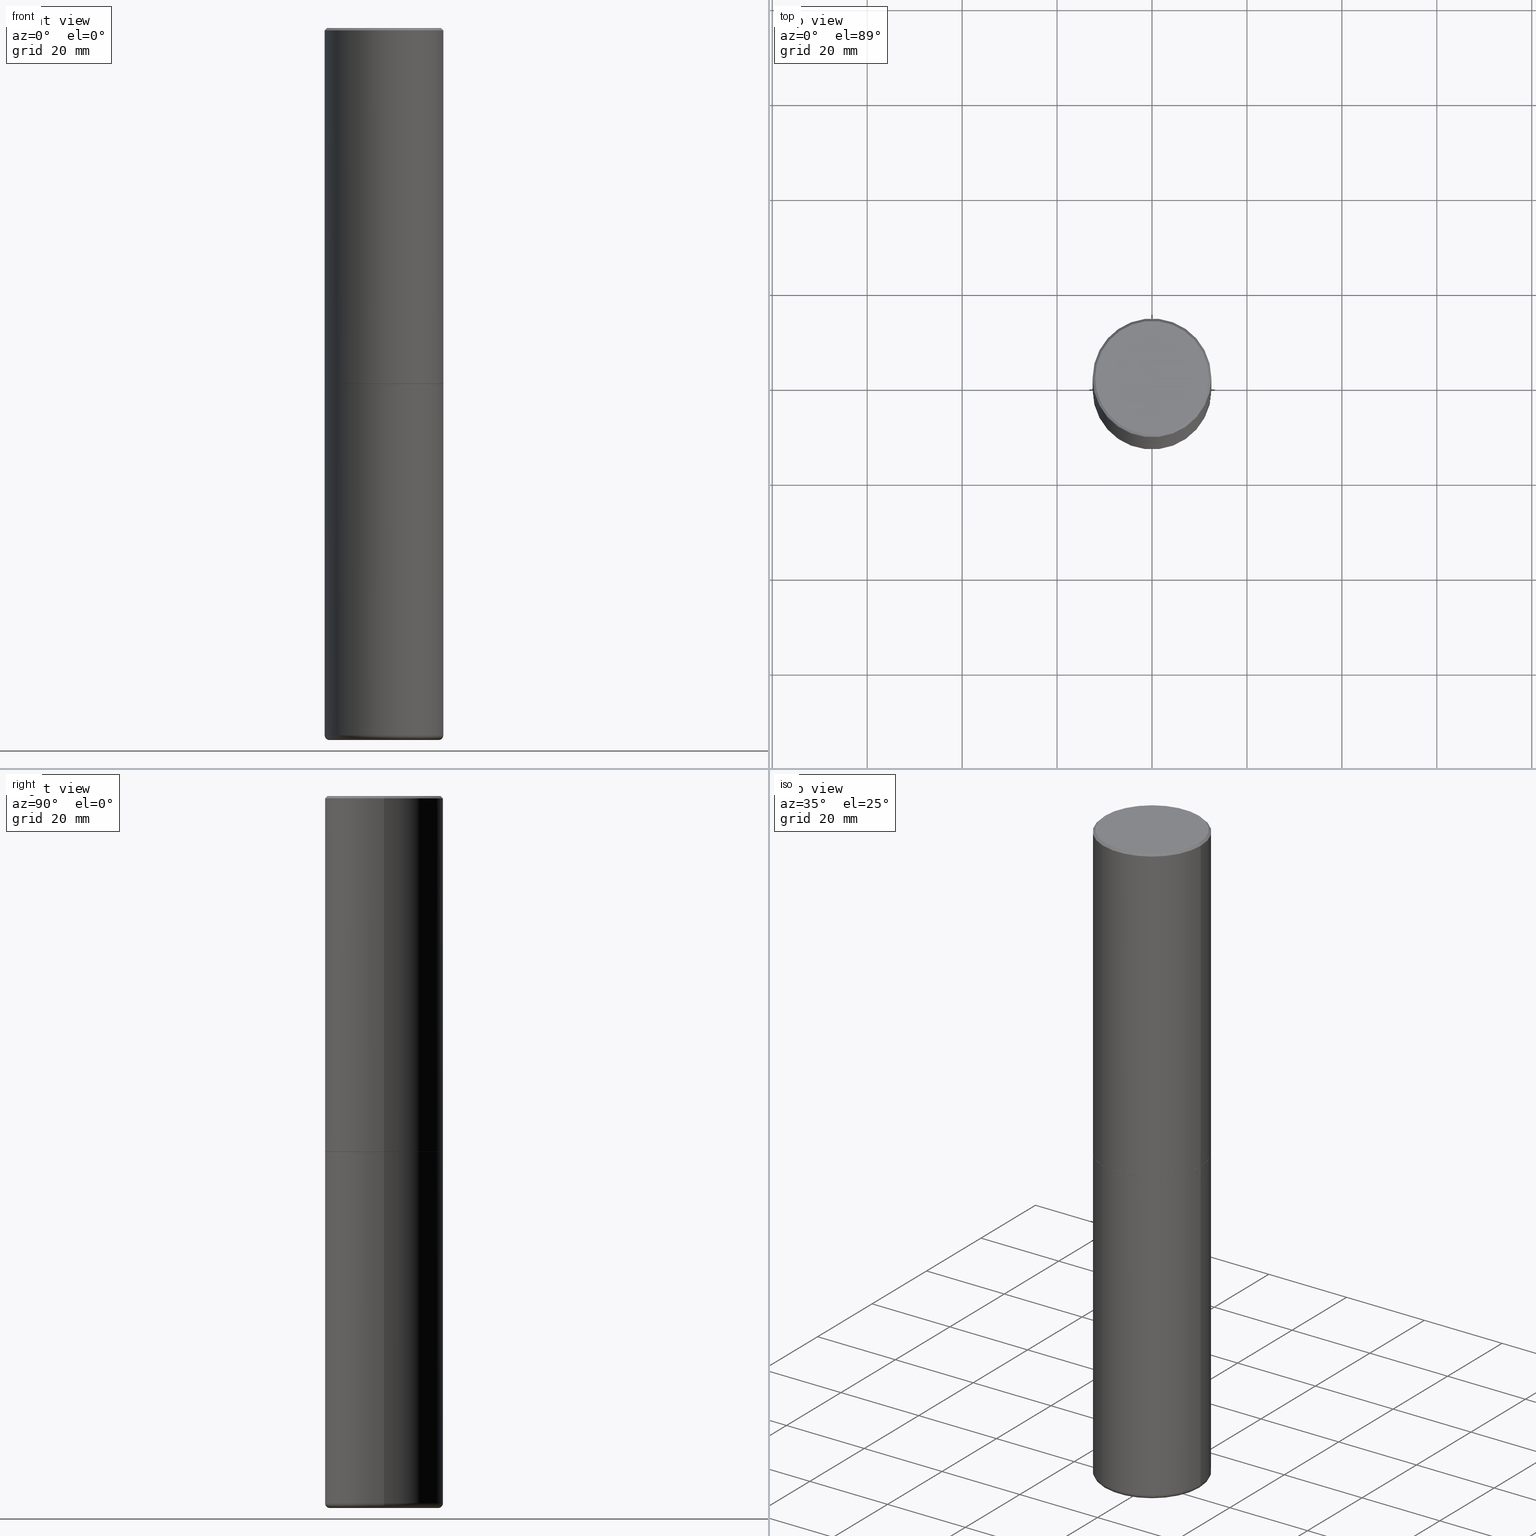
[diagram: canonical four-view strip — front | top / right | iso, engineering-drawing reading convention]
A machine part, canonical four-view strip (front | top / right | iso — engineering-drawing reading convention). The complete STEP part file that produces these views, byte-faithful:
ISO-10303-21;
HEADER;
FILE_DESCRIPTION (( 'STEP AP203' ),
    '1' );
FILE_NAME ('74884.STEP',
    '2024-05-02T19:26:57',
    ( '' ),
    ( '' ),
    'SwSTEP 2.0',
    'SolidWorks 2023',
    '' );
FILE_SCHEMA (( 'CONFIG_CONTROL_DESIGN' ));
ENDSEC;

DATA;
#1 = VERTEX_POINT ( 'NONE', #366 ) ;
#2 = FACE_OUTER_BOUND ( 'NONE', #404, .T. ) ;
#3 = ADVANCED_FACE ( 'NONE', ( #174 ), #260, .T. ) ;
#4 = DIRECTION ( 'NONE',  ( -1.000000000000000000, 6.982962677686265922E-15, 0.000000000000000000 ) ) ;
#5 = CARTESIAN_POINT ( 'NONE',  ( 7.220735744022852519E-29, -1.030929694920215502E-14, -2.952700000000000102 ) ) ;
#6 = LINE ( 'NONE', #265, #293 ) ;
#7 = AXIS2_PLACEMENT_3D ( 'NONE', #373, #407, #277 ) ;
#8 = FACE_OUTER_BOUND ( 'NONE', #320, .T. ) ;
#9 = ADVANCED_FACE ( 'NONE', ( #70 ), #307, .T. ) ;
#10 = CARTESIAN_POINT ( 'NONE',  ( 0.4921500000000000319, -3.446223716380123138E-15, -0.02000000000000010797 ) ) ;
#11 = DIRECTION ( 'NONE',  ( 1.000000000000000000, -6.982962677686266711E-15, 4.876176775795935232E-29 ) ) ;
#12 = AXIS2_PLACEMENT_3D ( 'NONE', #204, #126, #217 ) ;
#13 = CARTESIAN_POINT ( 'NONE',  ( -0.4921500000000000319, 3.366835455046432873E-15, -0.02000000000000010797 ) ) ;
#14 = APPROVAL_DATE_TIME ( #414, #291 ) ;
#15 = CC_DESIGN_PERSON_AND_ORGANIZATION_ASSIGNMENT ( #309, #191, ( #46 ) ) ;
#16 = DIRECTION ( 'NONE',  ( 2.445468806185136597E-29, -3.491481338843145583E-15, -1.000000000000000000 ) ) ;
#17 = PERSON_AND_ORGANIZATION_ROLE ( 'design_supplier' ) ;
#18 = DIRECTION ( 'NONE',  ( 1.000000000000000000, -6.982962677686269077E-15, 0.000000000000000000 ) ) ;
#19 = CARTESIAN_POINT ( 'NONE',  ( 4.890937612370299433E-31, -6.982962677686328587E-17, -0.02000000000000010797 ) ) ;
#20 = APPROVAL_PERSON_ORGANIZATION ( #218, #237, #62 ) ;
#21 = APPLICATION_CONTEXT ( 'configuration controlled 3d designs of mechanical parts and assemblies' ) ;
#22 = PRODUCT_DEFINITION ( 'UNKNOWN', '', #283, #247 ) ;
#23 = DIRECTION ( 'NONE',  ( 0.7071067811865453523, -7.319954787623248157E-15, -0.7071067811865496822 ) ) ;
#24 = PERSON ( 'UNSPECIFIED', 'UNSPECIFIED', 'UNSPECIFIED', ('UNSPECIFIED'), ('UNSPECIFIED'), ('UNSPECIFIED') ) ;
#25 = VERTEX_POINT ( 'NONE', #76 ) ;
#26 = EDGE_LOOP ( 'NONE', ( #165, #122, #359, #394 ) ) ;
#27 = AXIS2_PLACEMENT_3D ( 'NONE', #269, #278, #115 ) ;
#28 = SECURITY_CLASSIFICATION_LEVEL ( 'unclassified' ) ;
#29 = ORIENTED_EDGE ( 'NONE', *, *, #244, .F. ) ;
#30 = LINE ( 'NONE', #295, #234 ) ;
#31 = EDGE_LOOP ( 'NONE', ( #106, #159 ) ) ;
#32 = DIRECTION ( 'NONE',  ( 1.000000000000000000, -6.982962677686265922E-15, 0.000000000000000000 ) ) ;
#33 = ORIENTED_EDGE ( 'NONE', *, *, #50, .T. ) ;
#34 = VECTOR ( 'NONE', #141, 39.37007874015748143 ) ;
#35 = DIRECTION ( 'NONE',  ( -2.445468806185136597E-29, 3.491481338843145583E-15, 1.000000000000000000 ) ) ;
#36 = DIRECTION ( 'NONE',  ( 1.000000000000000000, -6.982962677686268288E-15, 4.883557194083113462E-29 ) ) ;
#37 = DIRECTION ( 'NONE',  ( 2.438088387897960049E-29, -3.491481338843145188E-15, -1.000000000000000000 ) ) ;
#38 = PRODUCT ( '74884', '74884', '', ( #121 ) ) ;
#39 = CARTESIAN_POINT ( 'NONE',  ( 7.220735744022852519E-29, -1.030929694920215502E-14, -2.952700000000000102 ) ) ;
#40 = CIRCLE ( 'NONE', #364, 0.4921500000000000319 ) ;
#41 = CARTESIAN_POINT ( 'NONE',  ( 7.220735744022852519E-29, -1.030929694920215502E-14, -2.952700000000000102 ) ) ;
#42 = DIRECTION ( 'NONE',  ( -2.445468806185136877E-29, 3.491481338843145188E-15, 1.000000000000000000 ) ) ;
#43 = FACE_OUTER_BOUND ( 'NONE', #63, .T. ) ;
#44 = CC_DESIGN_PERSON_AND_ORGANIZATION_ASSIGNMENT ( #252, #375, ( #38 ) ) ;
#45 = COORDINATED_UNIVERSAL_TIME_OFFSET ( 5, 0, .BEHIND. ) ;
#46 = SECURITY_CLASSIFICATION ( '', '', #28 ) ;
#47 = FACE_OUTER_BOUND ( 'NONE', #124, .T. ) ;
#48 = CALENDAR_DATE ( 2024, 2, 5 ) ;
#49 = DIRECTION ( 'NONE',  ( 1.000000000000000000, -6.982962677686268288E-15, 0.000000000000000000 ) ) ;
#50 = EDGE_CURVE ( 'NONE', #253, #162, #304, .T. ) ;
#51 = CARTESIAN_POINT ( 'NONE',  ( 1.444171603492632494E-28, -2.061894304653819828E-14, -5.905500000000000860 ) ) ;
#52 = CARTESIAN_POINT ( 'NONE',  ( -0.4527499999999999858, -1.719320170906439193E-14, -5.905500000000000860 ) ) ;
#53 = MANIFOLD_SOLID_BREP ( 'Body-Move/Copy2[1]', #215 ) ;
#54 = CYLINDRICAL_SURFACE ( 'NONE', #267, 0.4921499999999999764 ) ;
#55 = APPROVAL_STATUS ( 'not_yet_approved' ) ;
#56 = ORIENTED_EDGE ( 'NONE', *, *, #83, .T. ) ;
#57 = APPROVAL_ROLE ( '' ) ;
#58 = EDGE_LOOP ( 'NONE', ( #279, #219, #250, #227 ) ) ;
#59 = ORIENTED_EDGE ( 'NONE', *, *, #321, .F. ) ;
#60 = EDGE_CURVE ( 'NONE', #91, #400, #6, .T. ) ;
#61 = ORGANIZATION ( 'UNSPECIFIED', 'UNSPECIFIED', '' ) ;
#62 = APPROVAL_ROLE ( '' ) ;
#63 = EDGE_LOOP ( 'NONE', ( #361, #353, #385, #326 ) ) ;
#64 = ORIENTED_EDGE ( 'NONE', *, *, #274, .T. ) ;
#65 = DIRECTION ( 'NONE',  ( 0.7071067811867406405, -2.468850131084279700E-15, 0.7071067811863543939 ) ) ;
#66 = VERTEX_POINT ( 'NONE', #235 ) ;
#67 = AXIS2_PLACEMENT_3D ( 'NONE', #243, #239, #208 ) ;
#68 = AXIS2_PLACEMENT_3D ( 'NONE', #318, #180, #49 ) ;
#69 = CARTESIAN_POINT ( 'NONE',  ( 0.4911499999999999755, -1.373897906834776478E-14, -2.952700000000000102 ) ) ;
#70 = FACE_OUTER_BOUND ( 'NONE', #71, .T. ) ;
#71 = EDGE_LOOP ( 'NONE', ( #29, #226, #190, #355 ) ) ;
#72 = EDGE_CURVE ( 'NONE', #253, #156, #344, .T. ) ;
#73 = CARTESIAN_POINT ( 'NONE',  ( 0.4911499999999999755, -1.373897906834776478E-14, -2.952700000000000102 ) ) ;
#74 = CIRCLE ( 'NONE', #94, 0.4921500000000000319 ) ;
#75 = APPROVAL_PERSON_ORGANIZATION ( #89, #157, #57 ) ;
#76 = CARTESIAN_POINT ( 'NONE',  ( -0.4721499999999997921, 3.331920641658001618E-15, 2.817218243466039531E-16 ) ) ;
#77 = CARTESIAN_POINT ( 'NONE',  ( -0.4911499999999999755, -6.814167848168199148E-15, -2.952700000000000102 ) ) ;
#78 = ADVANCED_FACE ( 'NONE', ( #337 ), #275, .T. ) ;
#79 = DIRECTION ( 'NONE',  ( -0.7071067811865453523, 2.468850131082234184E-15, -0.7071067811865496822 ) ) ;
#80 = AXIS2_PLACEMENT_3D ( 'NONE', #139, #264, #365 ) ;
#81 = CIRCLE ( 'NONE', #171, 0.03940000000000040692 ) ;
#82 = DIRECTION ( 'NONE',  ( 1.000000000000000000, -6.982962677686269077E-15, 0.000000000000000000 ) ) ;
#83 = EDGE_CURVE ( 'NONE', #256, #96, #240, .T. ) ;
#84 = DIRECTION ( 'NONE',  ( 1.000000000000000000, -6.982962677686265922E-15, 4.882029041999364017E-29 ) ) ;
#85 = DIRECTION ( 'NONE',  ( -2.445468806185136597E-29, 3.491481338843145583E-15, 1.000000000000000000 ) ) ;
#86 = LINE ( 'NONE', #69, #276 ) ;
#87 = CIRCLE ( 'NONE', #80, 0.03940000000000040692 ) ;
#88 = AXIS2_PLACEMENT_3D ( 'NONE', #101, #228, #362 ) ;
#89 = PERSON_AND_ORGANIZATION ( #24, #61 ) ;
#90 = ADVANCED_FACE ( 'NONE', ( #8 ), #104, .F. ) ;
#91 = VERTEX_POINT ( 'NONE', #102 ) ;
#92 = DIRECTION ( 'NONE',  ( 0.000000000000000000, 0.000000000000000000, 1.000000000000000000 ) ) ;
#93 = ORIENTED_EDGE ( 'NONE', *, *, #333, .T. ) ;
#94 = AXIS2_PLACEMENT_3D ( 'NONE', #212, #184, #272 ) ;
#95 = DATE_AND_TIME ( #238, #111 ) ;
#96 = VERTEX_POINT ( 'NONE', #73 ) ;
#97 = ADVANCED_FACE ( 'NONE', ( #138 ), #172, .F. ) ;
#98 = VERTEX_POINT ( 'NONE', #10 ) ;
#99 = CARTESIAN_POINT ( 'NONE',  ( 7.220735744022852519E-29, -1.030929694920215502E-14, -2.952700000000000102 ) ) ;
#100 = ORIENTED_EDGE ( 'NONE', *, *, #187, .F. ) ;
#101 = CARTESIAN_POINT ( 'NONE',  ( 7.220735744022852519E-29, -1.030929694920215502E-14, -2.952700000000000102 ) ) ;
#102 = CARTESIAN_POINT ( 'NONE',  ( 0.4921500000000002539, -2.391804376361107326E-14, -5.866100000000000314 ) ) ;
#103 = CIRCLE ( 'NONE', #7, 0.4911499999999999755 ) ;
#104 = PLANE ( 'NONE',  #281 ) ;
#105 = CARTESIAN_POINT ( 'NONE',  ( 0.000000000000000000, 0.000000000000000000, 0.000000000000000000 ) ) ;
#106 = ORIENTED_EDGE ( 'NONE', *, *, #169, .F. ) ;
#107 = DIRECTION ( 'NONE',  ( -1.000000000000000000, 7.105427357601001859E-15, 0.000000000000000000 ) ) ;
#108 = APPLICATION_PROTOCOL_DEFINITION ( 'international standard', 'config_control_design', 1994, #289 ) ;
#109 = DIRECTION ( 'NONE',  ( -1.000000000000000000, 6.982962677686265922E-15, 0.000000000000000000 ) ) ;
#110 = AXIS2_PLACEMENT_3D ( 'NONE', #41, #229, #262 ) ;
#111 = LOCAL_TIME ( 15, 26, 57.00000000000000000, #352 ) ;
#112 = ORIENTED_EDGE ( 'NONE', *, *, #140, .T. ) ;
#113 = DIRECTION ( 'NONE',  ( -2.445468806185136597E-29, 3.491481338843145583E-15, 1.000000000000000000 ) ) ;
#114 = CARTESIAN_POINT ( 'NONE',  ( 1.444171603492632494E-28, -2.061894304653819828E-14, -5.905500000000000860 ) ) ;
#115 = DIRECTION ( 'NONE',  ( 1.000000000000000000, -6.982962677686265922E-15, 0.000000000000000000 ) ) ;
#116 = ADVANCED_FACE ( 'NONE', ( #233 ), #398, .T. ) ;
#117 = AXIS2_PLACEMENT_3D ( 'NONE', #371, #135, #201 ) ;
#118 = AXIS2_PLACEMENT_3D ( 'NONE', #310, #113, #175 ) ;
#119 = APPROVAL_DATE_TIME ( #181, #157 ) ;
#120 = ORIENTED_EDGE ( 'NONE', *, *, #145, .F. ) ;
#121 = MECHANICAL_CONTEXT ( 'NONE', #21, 'mechanical' ) ;
#122 = ORIENTED_EDGE ( 'NONE', *, *, #321, .T. ) ;
#123 = PERSON_AND_ORGANIZATION ( #24, #61 ) ;
#124 = EDGE_LOOP ( 'NONE', ( #112, #33, #285, #259 ) ) ;
#125 = EDGE_CURVE ( 'NONE', #1, #91, #87, .T. ) ;
#126 = DIRECTION ( 'NONE',  ( -2.445468806185136597E-29, 3.491481338843145583E-15, 1.000000000000000000 ) ) ;
#127 = AXIS2_PLACEMENT_3D ( 'NONE', #332, #205, #4 ) ;
#128 = LOCAL_TIME ( 15, 26, 57.00000000000000000, #189 ) ;
#129 = ORIENTED_EDGE ( 'NONE', *, *, #274, .F. ) ;
#130 = CARTESIAN_POINT ( 'NONE',  ( 0.4921499999999999764, -1.374596203102545079E-14, -2.952700000000000102 ) ) ;
#131 = ORIENTED_EDGE ( 'NONE', *, *, #145, .T. ) ;
#132 = DIRECTION ( 'NONE',  ( -2.445468806185136597E-29, 3.491481338843145583E-15, 1.000000000000000000 ) ) ;
#133 = DIRECTION ( 'NONE',  ( -1.000000000000000000, 6.982962677686265922E-15, -4.876176775795935793E-29 ) ) ;
#134 =( LENGTH_UNIT ( ) NAMED_UNIT ( * ) SI_UNIT ( $, .METRE. ) );
#135 = DIRECTION ( 'NONE',  ( -2.445468806185136597E-29, 3.491481338843145583E-15, 1.000000000000000000 ) ) ;
#136 = AXIS2_PLACEMENT_3D ( 'NONE', #263, #213, #246 ) ;
#137 = CIRCLE ( 'NONE', #88, 0.4921499999999999764 ) ;
#138 = FACE_OUTER_BOUND ( 'NONE', #254, .T. ) ;
#139 = CARTESIAN_POINT ( 'NONE',  ( 0.4527499999999999858, -2.364291503411023483E-14, -5.866100000000000314 ) ) ;
#140 = EDGE_CURVE ( 'NONE', #156, #253, #142, .T. ) ;
#141 = DIRECTION ( 'NONE',  ( -2.445468806185136877E-29, 3.491481338843145188E-15, 1.000000000000000000 ) ) ;
#142 = CIRCLE ( 'NONE', #136, 0.4921500000000003094 ) ;
#143 = CARTESIAN_POINT ( 'NONE',  ( -0.4527499999999999858, -1.726439644563392242E-14, -5.866100000000000314 ) ) ;
#144 = DATE_AND_TIME ( #286, #128 ) ;
#145 = EDGE_CURVE ( 'NONE', #66, #91, #74, .T. ) ;
#146 = DIRECTION ( 'NONE',  ( -2.445468806185136597E-29, 3.491481338843145583E-15, 1.000000000000000000 ) ) ;
#147 = LINE ( 'NONE', #209, #299 ) ;
#148 = AXIS2_PLACEMENT_3D ( 'NONE', #114, #245, #82 ) ;
#149 = FACE_OUTER_BOUND ( 'NONE', #167, .T. ) ;
#150 = ADVANCED_FACE ( 'NONE', ( #47 ), #314, .T. ) ;
#151 = CARTESIAN_POINT ( 'NONE',  ( -6.889419334612450925E-45, 9.836264924510951028E-31, 2.817218243466271259E-16 ) ) ;
#152 = EDGE_CURVE ( 'NONE', #197, #1, #381, .T. ) ;
#153 = DATE_TIME_ROLE ( 'creation_date' ) ;
#154 = ORIENTED_EDGE ( 'NONE', *, *, #408, .F. ) ;
#155 = CONICAL_SURFACE ( 'NONE', #68, 0.4911499999999999755, 0.7853981633977213939 ) ;
#156 = VERTEX_POINT ( 'NONE', #403 ) ;
#157 = APPROVAL ( #351, 'UNSPECIFIED' ) ;
#158 = PERSON_AND_ORGANIZATION_ROLE ( 'creator' ) ;
#159 = ORIENTED_EDGE ( 'NONE', *, *, #83, .F. ) ;
#160 =( NAMED_UNIT ( * ) SI_UNIT ( $, .STERADIAN. ) SOLID_ANGLE_UNIT ( ) );
#161 = PRODUCT_DEFINITION_SHAPE ( 'NONE', 'NONE',  #22 ) ;
#162 = VERTEX_POINT ( 'NONE', #315 ) ;
#163 = PLANE ( 'NONE',  #177 ) ;
#164 = APPROVAL_PERSON_ORGANIZATION ( #319, #291, #311 ) ;
#165 = ORIENTED_EDGE ( 'NONE', *, *, #182, .T. ) ;
#166 = PLANE ( 'NONE',  #390 ) ;
#167 = EDGE_LOOP ( 'NONE', ( #196, #56, #192, #282 ) ) ;
#168 = DIRECTION ( 'NONE',  ( -2.445468806185136877E-29, 3.491481338843145188E-15, 1.000000000000000000 ) ) ;
#169 = EDGE_CURVE ( 'NONE', #96, #256, #103, .T. ) ;
#170 = CARTESIAN_POINT ( 'NONE',  ( 3.297005828269569180E-15, 0.4721499999999997921, -1.507642001961476820E-15 ) ) ;
#171 = AXIS2_PLACEMENT_3D ( 'NONE', #143, #401, #107 ) ;
#172 = PLANE ( 'NONE',  #110 ) ;
#173 = ADVANCED_FACE ( 'NONE', ( #376 ), #223, .T. ) ;
#174 = FACE_OUTER_BOUND ( 'NONE', #58, .T. ) ;
#175 = DIRECTION ( 'NONE',  ( 1.000000000000000000, -6.982962677686268288E-15, 0.000000000000000000 ) ) ;
#176 = CLOSED_SHELL ( 'NONE', ( #298, #150, #9, #173, #3, #210, #411, #90 ) ) ;
#177 = AXIS2_PLACEMENT_3D ( 'NONE', #292, #37, #330 ) ;
#178 = DIRECTION ( 'NONE',  ( 1.000000000000000000, 0.000000000000000000, 0.000000000000000000 ) ) ;
#179 = ORIENTED_EDGE ( 'NONE', *, *, #408, .T. ) ;
#180 = DIRECTION ( 'NONE',  ( -2.445468806185136597E-29, 3.491481338843145583E-15, 1.000000000000000000 ) ) ;
#181 = DATE_AND_TIME ( #412, #230 ) ;
#182 = EDGE_CURVE ( 'NONE', #1, #197, #356, .T. ) ;
#183 = DIRECTION ( 'NONE',  ( -2.445468806185136597E-29, 3.491481338843145583E-15, 1.000000000000000000 ) ) ;
#184 = DIRECTION ( 'NONE',  ( -2.445468806185136597E-29, 3.491481338843145583E-15, 1.000000000000000000 ) ) ;
#185 = LOCAL_TIME ( 15, 26, 57.00000000000000000, #284 ) ;
#186 = CARTESIAN_POINT ( 'NONE',  ( 0.4921500000000000319, -3.446223716380123138E-15, -0.02000000000000010797 ) ) ;
#187 = EDGE_CURVE ( 'NONE', #25, #290, #389, .T. ) ;
#188 = DIRECTION ( 'NONE',  ( 1.000000000000000000, -6.982962677686265922E-15, 4.876176775795935793E-29 ) ) ;
#189 = COORDINATED_UNIVERSAL_TIME_OFFSET ( 5, 0, .BEHIND. ) ;
#190 = ORIENTED_EDGE ( 'NONE', *, *, #367, .T. ) ;
#191 = PERSON_AND_ORGANIZATION_ROLE ( 'classification_officer' ) ;
#192 = ORIENTED_EDGE ( 'NONE', *, *, #339, .T. ) ;
#193 = AXIS2_PLACEMENT_3D ( 'NONE', #39, #338, #206 ) ;
#194 = CIRCLE ( 'NONE', #369, 0.4921499999999999764 ) ;
#195 = DATE_TIME_ROLE ( 'classification_date' ) ;
#196 = ORIENTED_EDGE ( 'NONE', *, *, #221, .F. ) ;
#197 = VERTEX_POINT ( 'NONE', #52 ) ;
#198 = FACE_OUTER_BOUND ( 'NONE', #287, .T. ) ;
#199 = ORIENTED_EDGE ( 'NONE', *, *, #232, .F. ) ;
#200 = FACE_OUTER_BOUND ( 'NONE', #26, .T. ) ;
#201 = DIRECTION ( 'NONE',  ( 1.000000000000000000, -6.982962677686265922E-15, 0.000000000000000000 ) ) ;
#202 = CC_DESIGN_SECURITY_CLASSIFICATION ( #46, ( #283 ) ) ;
#203 = CC_DESIGN_DATE_AND_TIME_ASSIGNMENT ( #144, #195, ( #46 ) ) ;
#204 = CARTESIAN_POINT ( 'NONE',  ( 4.890937612370299433E-31, -6.982962677686328587E-17, -0.02000000000000010797 ) ) ;
#205 = DIRECTION ( 'NONE',  ( 2.445468806185136597E-29, -3.491481338843145583E-15, -1.000000000000000000 ) ) ;
#206 = DIRECTION ( 'NONE',  ( 1.000000000000000000, -6.982962677686268288E-15, 0.000000000000000000 ) ) ;
#207 = CC_DESIGN_PERSON_AND_ORGANIZATION_ASSIGNMENT ( #383, #17, ( #283 ) ) ;
#208 = DIRECTION ( 'NONE',  ( 1.000000000000000000, -6.982962677686266711E-15, 4.876176775795935232E-29 ) ) ;
#209 = CARTESIAN_POINT ( 'NONE',  ( -0.4921499999999999764, 3.496936074043332897E-15, -2.420853904668951509E-29 ) ) ;
#210 = ADVANCED_FACE ( 'NONE', ( #149 ), #155, .T. ) ;
#211 = CIRCLE ( 'NONE', #27, 0.4921500000000000319 ) ;
#212 = CARTESIAN_POINT ( 'NONE',  ( 1.434536456396262923E-28, -2.048137868178777591E-14, -5.866100000000000314 ) ) ;
#213 = DIRECTION ( 'NONE',  ( -2.445468806185136597E-29, 3.491481338843145583E-15, 1.000000000000000000 ) ) ;
#214 = DIRECTION ( 'NONE',  ( -0.7071067811867406405, 7.493145998871051513E-15, 0.7071067811863543939 ) ) ;
#215 = CLOSED_SHELL ( 'NONE', ( #116, #358, #97, #386, #78, #379 ) ) ;
#216 = CC_DESIGN_APPROVAL ( #291, ( #46 ) ) ;
#217 = DIRECTION ( 'NONE',  ( 1.000000000000000000, -6.982962677686265922E-15, 0.000000000000000000 ) ) ;
#218 = PERSON_AND_ORGANIZATION ( #24, #61 ) ;
#219 = ORIENTED_EDGE ( 'NONE', *, *, #72, .T. ) ;
#220 = UNCERTAINTY_MEASURE_WITH_UNIT (LENGTH_MEASURE( 1.000000000000000082E-05 ), #328, 'distance_accuracy_value', 'NONE');
#221 = EDGE_CURVE ( 'NONE', #256, #253, #378, .T. ) ;
#222 = ORIENTED_EDGE ( 'NONE', *, *, #305, .T. ) ;
#223 = CONICAL_SURFACE ( 'NONE', #335, 0.4921500000000000319, 0.7853981633974452814 ) ;
#224 = VECTOR ( 'NONE', #79, 39.37007874015748143 ) ;
#225 = ORIENTED_EDGE ( 'NONE', *, *, #251, .T. ) ;
#226 = ORIENTED_EDGE ( 'NONE', *, *, #232, .T. ) ;
#227 = ORIENTED_EDGE ( 'NONE', *, *, #251, .F. ) ;
#228 = DIRECTION ( 'NONE',  ( -2.445468806185136597E-29, 3.491481338843145583E-15, 1.000000000000000000 ) ) ;
#229 = DIRECTION ( 'NONE',  ( 2.438088387897960049E-29, -3.491481338843145188E-15, -1.000000000000000000 ) ) ;
#230 = LOCAL_TIME ( 15, 26, 57.00000000000000000, #45 ) ;
#231 = DIRECTION ( 'NONE',  ( 1.000000000000000000, -6.982962677686265922E-15, 4.876176775795935793E-29 ) ) ;
#232 = EDGE_CURVE ( 'NONE', #290, #98, #372, .T. ) ;
#233 = FACE_OUTER_BOUND ( 'NONE', #303, .T. ) ;
#234 = VECTOR ( 'NONE', #168, 39.37007874015748143 ) ;
#235 = CARTESIAN_POINT ( 'NONE',  ( -0.4921500000000002539, -1.698444260774444222E-14, -5.866100000000000314 ) ) ;
#236 = CARTESIAN_POINT ( 'NONE',  ( 1.434536456396262923E-28, -2.048137868178777591E-14, -5.866100000000000314 ) ) ;
#237 = APPROVAL ( #55, 'UNSPECIFIED' ) ;
#238 = CALENDAR_DATE ( 2024, 2, 5 ) ;
#239 = DIRECTION ( 'NONE',  ( -2.445468806185136597E-29, 3.491481338843145583E-15, 1.000000000000000000 ) ) ;
#240 = CIRCLE ( 'NONE', #193, 0.4911499999999999755 ) ;
#241 = VECTOR ( 'NONE', #23, 39.37007874015748143 ) ;
#242 = APPLICATION_PROTOCOL_DEFINITION ( 'international standard', 'config_control_design', 1994, #21 ) ;
#243 = CARTESIAN_POINT ( 'NONE',  ( 0.000000000000000000, 0.000000000000000000, 0.000000000000000000 ) ) ;
#244 = EDGE_CURVE ( 'NONE', #290, #25, #406, .T. ) ;
#245 = DIRECTION ( 'NONE',  ( -2.445468806185136597E-29, 3.491481338843145583E-15, 1.000000000000000000 ) ) ;
#246 = DIRECTION ( 'NONE',  ( 1.000000000000000000, -6.982962677686265922E-15, 0.000000000000000000 ) ) ;
#247 = DESIGN_CONTEXT ( 'detailed design', #289, 'design' ) ;
#248 = CIRCLE ( 'NONE', #12, 0.4921500000000000319 ) ;
#249 = APPROVAL_DATE_TIME ( #95, #237 ) ;
#250 = ORIENTED_EDGE ( 'NONE', *, *, #350, .T. ) ;
#251 = EDGE_CURVE ( 'NONE', #162, #98, #211, .T. ) ;
#252 = PERSON_AND_ORGANIZATION ( #24, #61 ) ;
#253 = VERTEX_POINT ( 'NONE', #409 ) ;
#254 = EDGE_LOOP ( 'NONE', ( #392, #179 ) ) ;
#255 = APPROVAL_STATUS ( 'not_yet_approved' ) ;
#256 = VERTEX_POINT ( 'NONE', #77 ) ;
#257 = EDGE_LOOP ( 'NONE', ( #59, #413, #294, #120 ) ) ;
#258 = DIRECTION ( 'NONE',  ( -2.438088387897960049E-29, 3.491481338843145188E-15, 1.000000000000000000 ) ) ;
#259 = ORIENTED_EDGE ( 'NONE', *, *, #350, .F. ) ;
#260 = CYLINDRICAL_SURFACE ( 'NONE', #316, 0.4921500000000001984 ) ;
#261 = CARTESIAN_POINT ( 'NONE',  ( 0.000000000000000000, 0.000000000000000000, 0.000000000000000000 ) ) ;
#262 = DIRECTION ( 'NONE',  ( -1.000000000000000000, 6.982962677686265922E-15, -4.876176775795935793E-29 ) ) ;
#263 = CARTESIAN_POINT ( 'NONE',  ( 7.218290275216666916E-29, -1.030580546786331359E-14, -2.951700000000000212 ) ) ;
#264 = DIRECTION ( 'NONE',  ( -6.982962677686266711E-15, -1.000000000000000000, 3.491481338843145583E-15 ) ) ;
#265 = CARTESIAN_POINT ( 'NONE',  ( 0.4921499999999999764, -3.436665081823295777E-15, 2.399810400207969603E-29 ) ) ;
#266 = AXIS2_PLACEMENT_3D ( 'NONE', #105, #300, #231 ) ;
#267 = AXIS2_PLACEMENT_3D ( 'NONE', #261, #132, #418 ) ;
#268 = CC_DESIGN_PERSON_AND_ORGANIZATION_ASSIGNMENT ( #123, #402, ( #22 ) ) ;
#269 = CARTESIAN_POINT ( 'NONE',  ( 4.890937612370299433E-31, -6.982962677686328587E-17, -0.02000000000000010797 ) ) ;
#270 = SHAPE_DEFINITION_REPRESENTATION ( #161, #312 ) ;
#271 = VERTEX_POINT ( 'NONE', #347 ) ;
#272 = DIRECTION ( 'NONE',  ( 1.000000000000000000, -6.982962677686265133E-15, 0.000000000000000000 ) ) ;
#273 = DIRECTION ( 'NONE',  ( 1.000000000000000000, -6.982962677686265922E-15, 4.882029041999364017E-29 ) ) ;
#274 = EDGE_CURVE ( 'NONE', #66, #271, #147, .T. ) ;
#275 = TOROIDAL_SURFACE ( 'NONE', #363, 0.4527499999999999858, 0.03940000000000037222 ) ;
#276 = VECTOR ( 'NONE', #65, 39.37007874015748143 ) ;
#277 = DIRECTION ( 'NONE',  ( 1.000000000000000000, -6.982962677686268288E-15, 0.000000000000000000 ) ) ;
#278 = DIRECTION ( 'NONE',  ( -2.445468806185136597E-29, 3.491481338843145583E-15, 1.000000000000000000 ) ) ;
#279 = ORIENTED_EDGE ( 'NONE', *, *, #50, .F. ) ;
#280 = EDGE_LOOP ( 'NONE', ( #199, #100, #222, #225 ) ) ;
#281 = AXIS2_PLACEMENT_3D ( 'NONE', #170, #296, #133 ) ;
#282 = ORIENTED_EDGE ( 'NONE', *, *, #72, .F. ) ;
#283 = PRODUCT_DEFINITION_FORMATION_WITH_SPECIFIED_SOURCE ( 'ANY', '', #38, .NOT_KNOWN. ) ;
#284 = COORDINATED_UNIVERSAL_TIME_OFFSET ( 5, 0, .BEHIND. ) ;
#285 = ORIENTED_EDGE ( 'NONE', *, *, #367, .F. ) ;
#286 = CALENDAR_DATE ( 2024, 2, 5 ) ;
#287 = EDGE_LOOP ( 'NONE', ( #129, #131, #325, #154 ) ) ;
#288 = LENGTH_MEASURE_WITH_UNIT ( LENGTH_MEASURE( 0.02539999999999999897 ), #134 );
#289 = APPLICATION_CONTEXT ( 'configuration controlled 3d designs of mechanical parts and assemblies' ) ;
#290 = VERTEX_POINT ( 'NONE', #405 ) ;
#291 = APPROVAL ( #255, 'UNSPECIFIED' ) ;
#292 = CARTESIAN_POINT ( 'NONE',  ( 4.488705641877112035E-29, -3.487222041955580978E-14, -5.905500000000000860 ) ) ;
#293 = VECTOR ( 'NONE', #42, 39.37007874015748143 ) ;
#294 = ORIENTED_EDGE ( 'NONE', *, *, #125, .T. ) ;
#295 = CARTESIAN_POINT ( 'NONE',  ( 0.4921500000000001984, -3.436665081823297354E-15, 2.399810400207970443E-29 ) ) ;
#296 = DIRECTION ( 'NONE',  ( 2.438088387897960049E-29, -3.491481338843145188E-15, -1.000000000000000000 ) ) ;
#297 = FACE_OUTER_BOUND ( 'NONE', #31, .T. ) ;
#298 = ADVANCED_FACE ( 'NONE', ( #43 ), #308, .T. ) ;
#299 = VECTOR ( 'NONE', #340, 39.37007874015748143 ) ;
#300 = DIRECTION ( 'NONE',  ( -2.445468806185136597E-29, 3.491481338843145583E-15, 1.000000000000000000 ) ) ;
#301 =( GEOMETRIC_REPRESENTATION_CONTEXT ( 3 ) GLOBAL_UNCERTAINTY_ASSIGNED_CONTEXT ( ( #220 ) ) GLOBAL_UNIT_ASSIGNED_CONTEXT ( ( #328, #380, #160 ) ) REPRESENTATION_CONTEXT ( 'NONE', 'WORKASPACE' ) );
#302 = CARTESIAN_POINT ( 'NONE',  ( -0.4921500000000001984, 3.496936074043334475E-15, -2.420853904668952630E-29 ) ) ;
#303 = EDGE_LOOP ( 'NONE', ( #93, #64, #416, #322 ) ) ;
#304 = LINE ( 'NONE', #302, #34 ) ;
#305 = EDGE_CURVE ( 'NONE', #25, #162, #306, .T. ) ;
#306 = LINE ( 'NONE', #13, #224 ) ;
#307 = CONICAL_SURFACE ( 'NONE', #127, 0.4921500000000000319, 0.7853981633974452814 ) ;
#308 = CONICAL_SURFACE ( 'NONE', #118, 0.4911499999999999755, 0.7853981633977213939 ) ;
#309 = PERSON_AND_ORGANIZATION ( #24, #61 ) ;
#310 = CARTESIAN_POINT ( 'NONE',  ( 7.220735744022852519E-29, -1.030929694920215502E-14, -2.952700000000000102 ) ) ;
#311 = APPROVAL_ROLE ( '' ) ;
#312 = ADVANCED_BREP_SHAPE_REPRESENTATION ( '74884', ( #53, #341, #336 ), #301 ) ;
#313 = CC_DESIGN_DATE_AND_TIME_ASSIGNMENT ( #342, #153, ( #22 ) ) ;
#314 = CYLINDRICAL_SURFACE ( 'NONE', #67, 0.4921500000000001984 ) ;
#315 = CARTESIAN_POINT ( 'NONE',  ( -0.4921500000000000319, 3.366835455046432873E-15, -0.02000000000000010797 ) ) ;
#316 = AXIS2_PLACEMENT_3D ( 'NONE', #396, #370, #11 ) ;
#317 = CC_DESIGN_APPROVAL ( #157, ( #283 ) ) ;
#318 = CARTESIAN_POINT ( 'NONE',  ( 7.220735744022852519E-29, -1.030929694920215502E-14, -2.952700000000000102 ) ) ;
#319 = PERSON_AND_ORGANIZATION ( #24, #61 ) ;
#320 = EDGE_LOOP ( 'NONE', ( #329, #388 ) ) ;
#321 = EDGE_CURVE ( 'NONE', #197, #66, #81, .T. ) ;
#322 = ORIENTED_EDGE ( 'NONE', *, *, #60, .F. ) ;
#323 = TOROIDAL_SURFACE ( 'NONE', #382, 0.4527499999999999858, 0.03940000000000037222 ) ;
#324 = CALENDAR_DATE ( 2024, 2, 5 ) ;
#325 = ORIENTED_EDGE ( 'NONE', *, *, #60, .T. ) ;
#326 = ORIENTED_EDGE ( 'NONE', *, *, #339, .F. ) ;
#327 = DIMENSIONAL_EXPONENTS ( 1.000000000000000000, 0.000000000000000000, 0.000000000000000000, 0.000000000000000000, 0.000000000000000000, 0.000000000000000000, 0.000000000000000000 ) ;
#328 =( CONVERSION_BASED_UNIT ( 'INCH', #288 ) LENGTH_UNIT ( ) NAMED_UNIT ( #327 ) );
#329 = ORIENTED_EDGE ( 'NONE', *, *, #187, .T. ) ;
#330 = DIRECTION ( 'NONE',  ( -1.000000000000000000, 6.982962677686265922E-15, -4.876176775795935793E-29 ) ) ;
#331 = DIRECTION ( 'NONE',  ( -2.445468806185136597E-29, 3.491481338843145583E-15, 1.000000000000000000 ) ) ;
#332 = CARTESIAN_POINT ( 'NONE',  ( 4.890937612370299433E-31, -6.982962677686328587E-17, -0.02000000000000010797 ) ) ;
#333 = EDGE_CURVE ( 'NONE', #91, #66, #40, .T. ) ;
#334 = CARTESIAN_POINT ( 'NONE',  ( 1.434536456396262923E-28, -2.048137868178777591E-14, -5.866100000000000314 ) ) ;
#335 = AXIS2_PLACEMENT_3D ( 'NONE', #19, #16, #109 ) ;
#336 = AXIS2_PLACEMENT_3D ( 'NONE', #387, #92, #178 ) ;
#337 = FACE_OUTER_BOUND ( 'NONE', #257, .T. ) ;
#338 = DIRECTION ( 'NONE',  ( -2.445468806185136597E-29, 3.491481338843145583E-15, 1.000000000000000000 ) ) ;
#339 = EDGE_CURVE ( 'NONE', #96, #156, #86, .T. ) ;
#340 = DIRECTION ( 'NONE',  ( -2.445468806185136877E-29, 3.491481338843145188E-15, 1.000000000000000000 ) ) ;
#341 = MANIFOLD_SOLID_BREP ( 'Body-Move/Copy2[2]', #176 ) ;
#342 = DATE_AND_TIME ( #48, #185 ) ;
#343 = CARTESIAN_POINT ( 'NONE',  ( -0.4911499999999999755, -6.819466302516422338E-15, -2.952700000000000102 ) ) ;
#344 = CIRCLE ( 'NONE', #117, 0.4921500000000003094 ) ;
#345 = COORDINATED_UNIVERSAL_TIME_OFFSET ( 5, 0, .BEHIND. ) ;
#346 = CARTESIAN_POINT ( 'NONE',  ( -6.889419334612450925E-45, 9.836264924510951028E-31, 2.817218243466271259E-16 ) ) ;
#347 = CARTESIAN_POINT ( 'NONE',  ( -0.4921499999999999764, -1.189840174145163414E-14, -2.952700000000000102 ) ) ;
#348 = DIRECTION ( 'NONE',  ( -2.445468806185136597E-29, 3.491481338843145583E-15, 1.000000000000000000 ) ) ;
#349 = DIRECTION ( 'NONE',  ( 1.000000000000000000, -6.982962677686268288E-15, 4.883557194083113462E-29 ) ) ;
#350 = EDGE_CURVE ( 'NONE', #156, #98, #30, .T. ) ;
#351 = APPROVAL_STATUS ( 'not_yet_approved' ) ;
#352 = COORDINATED_UNIVERSAL_TIME_OFFSET ( 5, 0, .BEHIND. ) ;
#353 = ORIENTED_EDGE ( 'NONE', *, *, #221, .T. ) ;
#354 = PERSON_AND_ORGANIZATION ( #24, #61 ) ;
#355 = ORIENTED_EDGE ( 'NONE', *, *, #305, .F. ) ;
#356 = CIRCLE ( 'NONE', #148, 0.4527499999999999858 ) ;
#357 = CC_DESIGN_APPROVAL ( #237, ( #22 ) ) ;
#358 = ADVANCED_FACE ( 'NONE', ( #200 ), #323, .T. ) ;
#359 = ORIENTED_EDGE ( 'NONE', *, *, #333, .F. ) ;
#360 = DIRECTION ( 'NONE',  ( 1.000000000000000000, -6.982962677686265133E-15, 0.000000000000000000 ) ) ;
#361 = ORIENTED_EDGE ( 'NONE', *, *, #169, .T. ) ;
#362 = DIRECTION ( 'NONE',  ( 1.000000000000000000, -6.982962677686265922E-15, 0.000000000000000000 ) ) ;
#363 = AXIS2_PLACEMENT_3D ( 'NONE', #334, #331, #36 ) ;
#364 = AXIS2_PLACEMENT_3D ( 'NONE', #236, #146, #360 ) ;
#365 = DIRECTION ( 'NONE',  ( 1.000000000000000000, -6.982962677686256455E-15, 0.000000000000000000 ) ) ;
#366 = CARTESIAN_POINT ( 'NONE',  ( 0.4527499999999999858, -2.378047939886065405E-14, -5.905500000000000860 ) ) ;
#367 = EDGE_CURVE ( 'NONE', #98, #162, #248, .T. ) ;
#368 = AXIS2_PLACEMENT_3D ( 'NONE', #346, #85, #273 ) ;
#369 = AXIS2_PLACEMENT_3D ( 'NONE', #99, #35, #32 ) ;
#370 = DIRECTION ( 'NONE',  ( -2.445468806185136597E-29, 3.491481338843145583E-15, 1.000000000000000000 ) ) ;
#371 = CARTESIAN_POINT ( 'NONE',  ( 7.218290275216666916E-29, -1.030580546786331359E-14, -2.951700000000000212 ) ) ;
#372 = LINE ( 'NONE', #186, #241 ) ;
#373 = CARTESIAN_POINT ( 'NONE',  ( 7.220735744022852519E-29, -1.030929694920215502E-14, -2.952700000000000102 ) ) ;
#374 = AXIS2_PLACEMENT_3D ( 'NONE', #151, #183, #84 ) ;
#375 = PERSON_AND_ORGANIZATION_ROLE ( 'design_owner' ) ;
#376 = FACE_OUTER_BOUND ( 'NONE', #280, .T. ) ;
#377 = EDGE_CURVE ( 'NONE', #400, #271, #137, .T. ) ;
#378 = LINE ( 'NONE', #343, #397 ) ;
#379 = ADVANCED_FACE ( 'NONE', ( #2 ), #163, .T. ) ;
#380 =( NAMED_UNIT ( * ) PLANE_ANGLE_UNIT ( ) SI_UNIT ( $, .RADIAN. ) );
#381 = CIRCLE ( 'NONE', #410, 0.4527499999999999858 ) ;
#382 = AXIS2_PLACEMENT_3D ( 'NONE', #393, #391, #349 ) ;
#383 = PERSON_AND_ORGANIZATION ( #24, #61 ) ;
#384 = ORIENTED_EDGE ( 'NONE', *, *, #182, .F. ) ;
#385 = ORIENTED_EDGE ( 'NONE', *, *, #140, .F. ) ;
#386 = ADVANCED_FACE ( 'NONE', ( #198 ), #54, .T. ) ;
#387 = CARTESIAN_POINT ( 'NONE',  ( 0.000000000000000000, 0.000000000000000000, 0.000000000000000000 ) ) ;
#388 = ORIENTED_EDGE ( 'NONE', *, *, #244, .T. ) ;
#389 = CIRCLE ( 'NONE', #368, 0.4721499999999997921 ) ;
#390 = AXIS2_PLACEMENT_3D ( 'NONE', #5, #258, #188 ) ;
#391 = DIRECTION ( 'NONE',  ( -2.445468806185136597E-29, 3.491481338843145583E-15, 1.000000000000000000 ) ) ;
#392 = ORIENTED_EDGE ( 'NONE', *, *, #377, .T. ) ;
#393 = CARTESIAN_POINT ( 'NONE',  ( 1.434536456396262923E-28, -2.048137868178777591E-14, -5.866100000000000314 ) ) ;
#394 = ORIENTED_EDGE ( 'NONE', *, *, #125, .F. ) ;
#395 = PRODUCT_RELATED_PRODUCT_CATEGORY ( 'detail', '', ( #38 ) ) ;
#396 = CARTESIAN_POINT ( 'NONE',  ( 0.000000000000000000, 0.000000000000000000, 0.000000000000000000 ) ) ;
#397 = VECTOR ( 'NONE', #214, 39.37007874015748143 ) ;
#398 = CYLINDRICAL_SURFACE ( 'NONE', #266, 0.4921499999999999764 ) ;
#399 = CC_DESIGN_PERSON_AND_ORGANIZATION_ASSIGNMENT ( #354, #158, ( #283 ) ) ;
#400 = VERTEX_POINT ( 'NONE', #130 ) ;
#401 = DIRECTION ( 'NONE',  ( 7.105427357601001859E-15, 1.000000000000000000, -3.491481338843145583E-15 ) ) ;
#402 = PERSON_AND_ORGANIZATION_ROLE ( 'creator' ) ;
#403 = CARTESIAN_POINT ( 'NONE',  ( 0.4921500000000003094, -1.374247054968661252E-14, -2.951700000000000212 ) ) ;
#404 = EDGE_LOOP ( 'NONE', ( #384, #415 ) ) ;
#405 = CARTESIAN_POINT ( 'NONE',  ( 0.4721499999999997921, -3.342703923013974974E-15, 2.817218243466503973E-16 ) ) ;
#406 = CIRCLE ( 'NONE', #374, 0.4721499999999997921 ) ;
#407 = DIRECTION ( 'NONE',  ( -2.445468806185136597E-29, 3.491481338843145583E-15, 1.000000000000000000 ) ) ;
#408 = EDGE_CURVE ( 'NONE', #271, #400, #194, .T. ) ;
#409 = CARTESIAN_POINT ( 'NONE',  ( -0.4921500000000003094, -1.690881473276752982E-15, -2.951700000000000212 ) ) ;
#410 = AXIS2_PLACEMENT_3D ( 'NONE', #51, #348, #18 ) ;
#411 = ADVANCED_FACE ( 'NONE', ( #297 ), #166, .F. ) ;
#412 = CALENDAR_DATE ( 2024, 2, 5 ) ;
#413 = ORIENTED_EDGE ( 'NONE', *, *, #152, .T. ) ;
#414 = DATE_AND_TIME ( #324, #417 ) ;
#415 = ORIENTED_EDGE ( 'NONE', *, *, #152, .F. ) ;
#416 = ORIENTED_EDGE ( 'NONE', *, *, #377, .F. ) ;
#417 = LOCAL_TIME ( 15, 26, 57.00000000000000000, #345 ) ;
#418 = DIRECTION ( 'NONE',  ( 1.000000000000000000, -6.982962677686265922E-15, 4.876176775795935793E-29 ) ) ;
ENDSEC;
END-ISO-10303-21;
